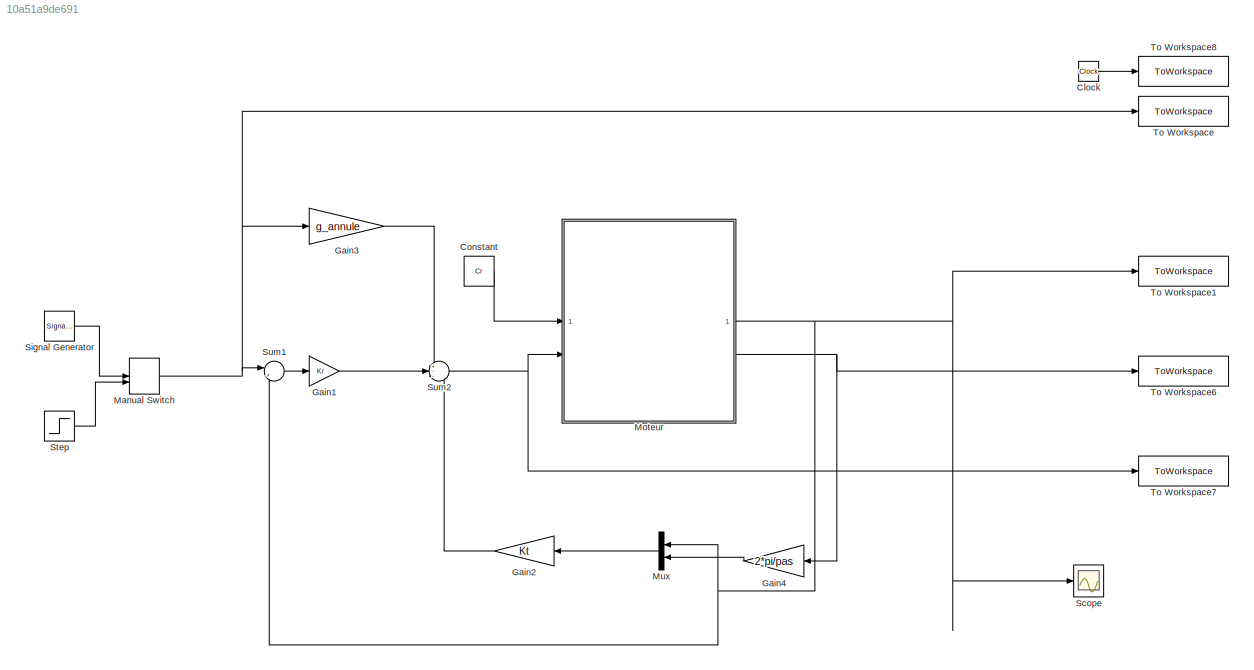
MODEL slx_10a51a9de691
KIND model
CONFIG AbsTol = auto
CONFIG EnableMultiTasking = off
CONFIG FixedStep = 1e-5
CONFIG MaxStep = auto
CONFIG MinStep = auto
CONFIG RelTol = 1e-3
CONFIG SampleTimeConstraint = Unconstrained
CONFIG SolverName = FixedStepAuto
CONFIG StartTime = 0.0
CONFIG StopTime = 3
BLOCK [Clock] Clock
BLOCK [Constant] Constant
  Value = Cr
BLOCK [Gain] Gain1
  Gain = Kr
BLOCK [Gain] Gain2
  Gain = Kt
  Multiplication = Matrix(K*u) (u vector)
  NameLocation = top
BLOCK [Gain] Gain3
  Gain = g_annule
BLOCK [Gain] Gain4
  Gain = 2*pi/pas
  NameLocation = top
BLOCK [ManualSwitch] Manual Switch
  CurrentSetting = 0
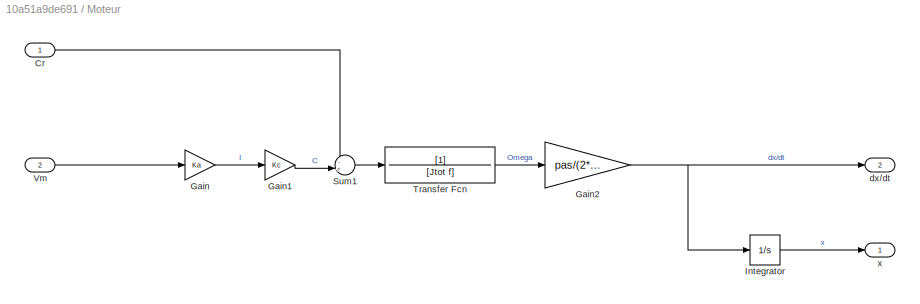
BLOCK [SubSystem] Moteur
BLOCK [Inport] Moteur/Cr
BLOCK [Gain] Moteur/Gain
  Gain = Ka
BLOCK [Gain] Moteur/Gain1
  Gain = Kc
BLOCK [Gain] Moteur/Gain2
  Gain = pas/(2*pi)
BLOCK [Integrator] Moteur/Integrator
BLOCK [Sum] Moteur/Sum1
  Inputs = -+|
BLOCK [TransferFcn] Moteur/Transfer Fcn
  Denominator = [Jtot f]
BLOCK [Inport] Moteur/Vm
  Port = 2
BLOCK [Outport] Moteur/dx//dt
  Port = 2
BLOCK [Outport] Moteur/x
BLOCK [Mux] Mux
  DisplayOption = bar
  Inputs = 2
  NameLocation = top
BLOCK [Scope] Scope
  Floating = off
  NumInputPorts = 1
  ScopeSpecificationString = Simulink.scopes.TimeScopeBlockCfg('CurrentConfiguration', extmgr.ConfigurationSet(extmgr.Configuration('Core','General UI',true),extmgr.Configuration('Core','Source UI',true),extmgr.Configuration('Sources','WiredSimulink',true),extmgr.Configuration('Visuals','Time Domain',true,'SerializedDisplays',{struct('MinYLimReal','-1.00000','MaxYLimReal','1.00000','YLabelReal','','MinYLimMag','0.00000','MaxY...<+1383ch>
BLOCK [SignalGenerator] Signal Generator
  Amplitude = 0.35
  Frequency = 0.5
  Units = rad/sec
  WaveForm = square
BLOCK [Step] Step
  After = 0.35
  SampleTime = 0
  Time = 0
BLOCK [Sum] Sum1
  Inputs = |+-
BLOCK [Sum] Sum2
  Inputs = +--
BLOCK [ToWorkspace] To Workspace
  FixptAsFi = on
  MaxDataPoints = inf
  SampleTime = -1
  SaveFormat = Timeseries
  VariableName = consigne
BLOCK [ToWorkspace] To Workspace1
  FixptAsFi = on
  MaxDataPoints = inf
  SampleTime = -1
  SaveFormat = Timeseries
  VariableName = position
BLOCK [ToWorkspace] To Workspace6
  FixptAsFi = on
  MaxDataPoints = inf
  SampleTime = -1
  SaveFormat = Timeseries
  VariableName = vitesse
BLOCK [ToWorkspace] To Workspace7
  FixptAsFi = on
  MaxDataPoints = inf
  SampleTime = -1
  SaveFormat = Timeseries
  VariableName = commande
BLOCK [ToWorkspace] To Workspace8
  FixptAsFi = on
  MaxDataPoints = inf
  SampleTime = -1
  SaveFormat = Timeseries
  VariableName = time
LINE Clock:1 -> To Workspace8:1
LINE Constant:1 -> Moteur:1
LINE Gain1:1 -> Sum2:2
LINE Gain2:1 -> Sum2:3
LINE Gain3:1 -> Sum2:1
LINE Gain4:1 -> Mux:2
NET Manual Switch:1 -> Gain3:1, Sum1:1, To Workspace:1
LINE Moteur/Cr:1 -> Moteur/Sum1:1
LINE Moteur/Gain1:1 -> Moteur/Sum1:2
NET Moteur/Gain2:1 -> Moteur/Integrator:1, Moteur/dx//dt:1
LINE Moteur/Gain:1 -> Moteur/Gain1:1
LINE Moteur/Integrator:1 -> Moteur/x:1
LINE Moteur/Sum1:1 -> Moteur/Transfer Fcn:1
LINE Moteur/Transfer Fcn:1 -> Moteur/Gain2:1
LINE Moteur/Vm:1 -> Moteur/Gain:1
NET Moteur:1 -> Mux:1, Scope:1, Sum1:2, To Workspace1:1
NET Moteur:2 -> Gain4:1, To Workspace6:1
LINE Mux:1 -> Gain2:1
LINE Signal Generator:1 -> Manual Switch:1
LINE Step:1 -> Manual Switch:2
LINE Sum1:1 -> Gain1:1
NET Sum2:1 -> Moteur:2, To Workspace7:1
note: NET lines group one-source signal fan-out (src -> all destinations, sorted); 1:1 wires keep LINE
